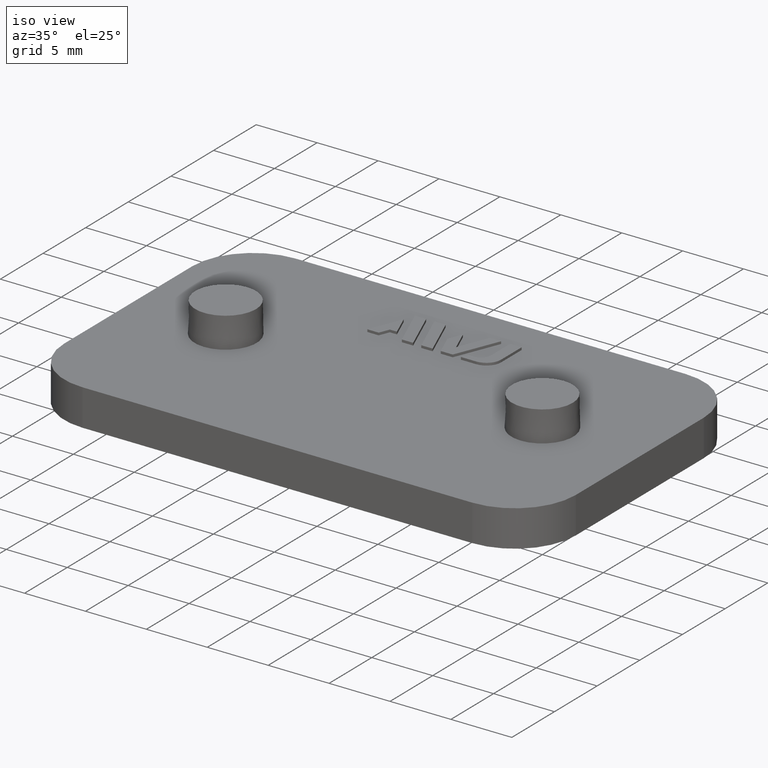
[diagram: clean part render]
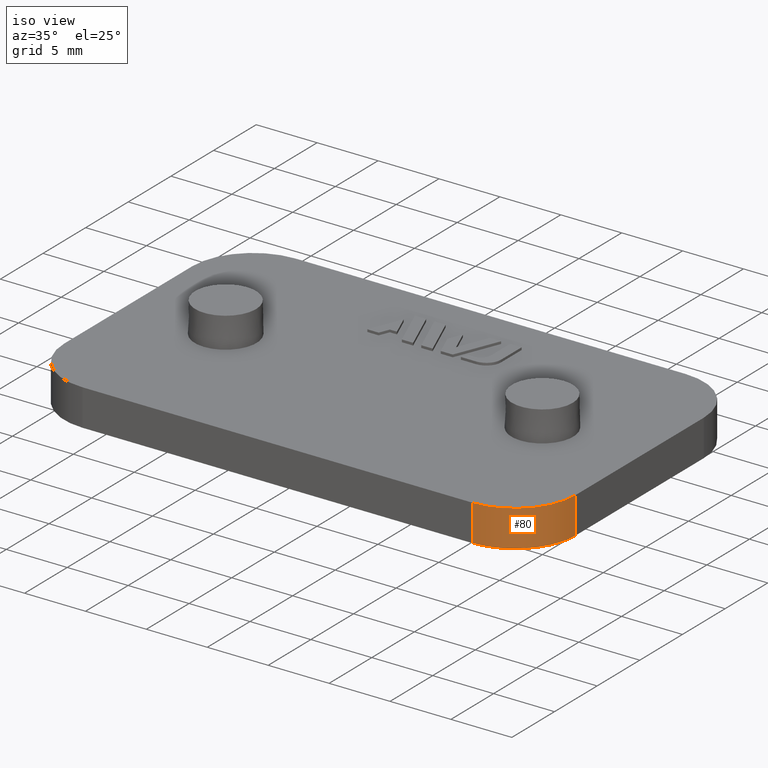
[diagram: same view with one face highlighted and labeled with its STEP entity id]
A machine part, iso view. The second image highlights one B-rep face of the part: STEP entity #80.
In plain terms, the highlighted cylindrical surface (partial cylindrical patch) has radius 5 mm, axis along (-0, 0, 1).
Its self-contained STEP definition (entity closure, byte-faithful):
#80 = ADVANCED_FACE( '', ( #154 ), #155, .T. );
#154 = FACE_OUTER_BOUND( '', #287, .T. );
#155 = CYLINDRICAL_SURFACE( '', #288, 5.00000000000000 );
#287 = EDGE_LOOP( '', ( #472, #473, #474, #475 ) );
#288 = AXIS2_PLACEMENT_3D( '', #476, #477, #478 );
#472 = ORIENTED_EDGE( '', *, *, #931, .F. );
#473 = ORIENTED_EDGE( '', *, *, #930, .F. );
#474 = ORIENTED_EDGE( '', *, *, #899, .T. );
#475 = ORIENTED_EDGE( '', *, *, #932, .T. );
#476 = CARTESIAN_POINT( '', ( 16.0000000000000, -7.49999999999997, 64.3690937321107 ) );
#477 = DIRECTION( '', ( -1.60751816480226E-016, 1.81794180051289E-016, 1.00000000000000 ) );
#478 = DIRECTION( '', ( 1.00000000000000, 5.90573087550521E-032, 1.60751816480226E-016 ) );
#899 = EDGE_CURVE( '', #1065, #1063, #1066, .T. );
#930 = EDGE_CURVE( '', #1065, #1120, #1123, .T. );
#931 = EDGE_CURVE( '', #1120, #1124, #1125, .T. );
#932 = EDGE_CURVE( '', #1063, #1124, #1126, .T. );
#1063 = VERTEX_POINT( '', #1324 );
#1065 = VERTEX_POINT( '', #1327 );
#1066 = CIRCLE( '', #1328, 5.00000000000000 );
#1120 = VERTEX_POINT( '', #1406 );
#1123 = LINE( '', #1411, #1412 );
#1124 = VERTEX_POINT( '', #1413 );
#1125 = CIRCLE( '', #1414, 5.00000000000000 );
#1126 = LINE( '', #1415, #1416 );
#1324 = CARTESIAN_POINT( '', ( 16.0000000000000, -12.5000000000000, 2.99999999999998 ) );
#1327 = CARTESIAN_POINT( '', ( 21.0000000000000, -7.50000000000002, 2.99999999999998 ) );
#1328 = AXIS2_PLACEMENT_3D( '', #1681, #1682, #1683 );
#1406 = CARTESIAN_POINT( '', ( 21.0000000000000, -7.50000000000002, -2.03574543290383E-014 ) );
#1411 = CARTESIAN_POINT( '', ( 21.0000000000000, -7.50000000000000, 64.3690937321107 ) );
#1412 = VECTOR( '', #1722, 1000.00000000000 );
#1413 = CARTESIAN_POINT( '', ( 16.0000000000000, -12.5000000000000, -2.00513027405827E-014 ) );
#1414 = AXIS2_PLACEMENT_3D( '', #1723, #1724, #1725 );
#1415 = CARTESIAN_POINT( '', ( 16.0000000000000, -12.5000000000000, 64.3690937321107 ) );
#1416 = VECTOR( '', #1726, 1000.00000000000 );
#1681 = CARTESIAN_POINT( '', ( 16.0000000000000, -7.49999999999999, 2.99999999999998 ) );
#1682 = DIRECTION( '', ( 0.000000000000000, -6.12303176911189E-017, -1.00000000000000 ) );
#1683 = DIRECTION( '', ( 0.000000000000000, 1.00000000000000, -6.12303176911189E-017 ) );
#1722 = DIRECTION( '', ( 1.60751816480226E-016, -1.81794180051289E-016, -1.00000000000000 ) );
#1723 = CARTESIAN_POINT( '', ( 16.0000000000000, -7.49999999999999, -2.03574543290383E-014 ) );
#1724 = DIRECTION( '', ( 0.000000000000000, -6.12303176911189E-017, -1.00000000000000 ) );
#1725 = DIRECTION( '', ( 0.000000000000000, 1.00000000000000, -6.12303176911189E-017 ) );
#1726 = DIRECTION( '', ( 1.60751816480226E-016, -1.81794180051289E-016, -1.00000000000000 ) );